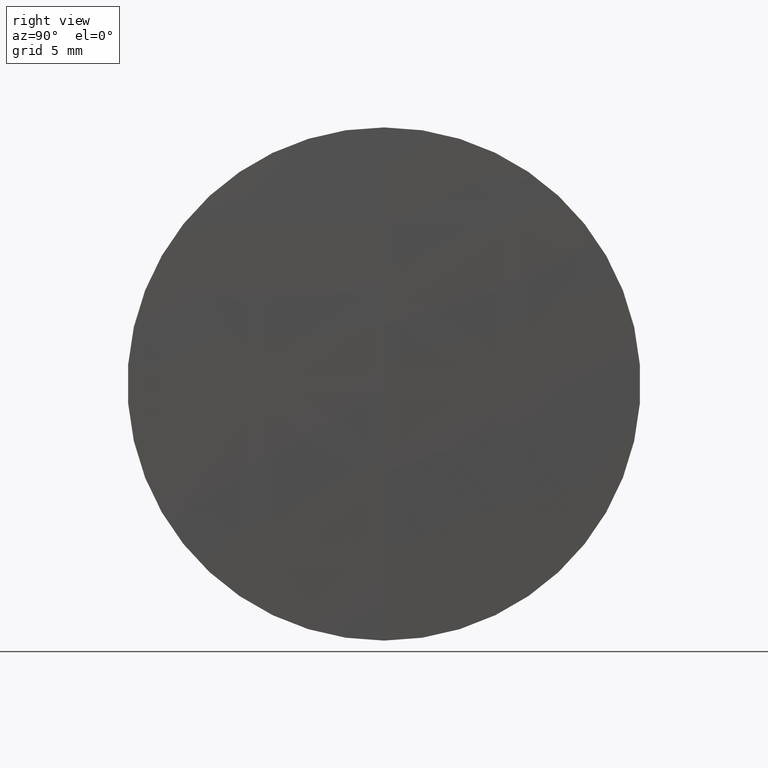
[diagram: clean part render]
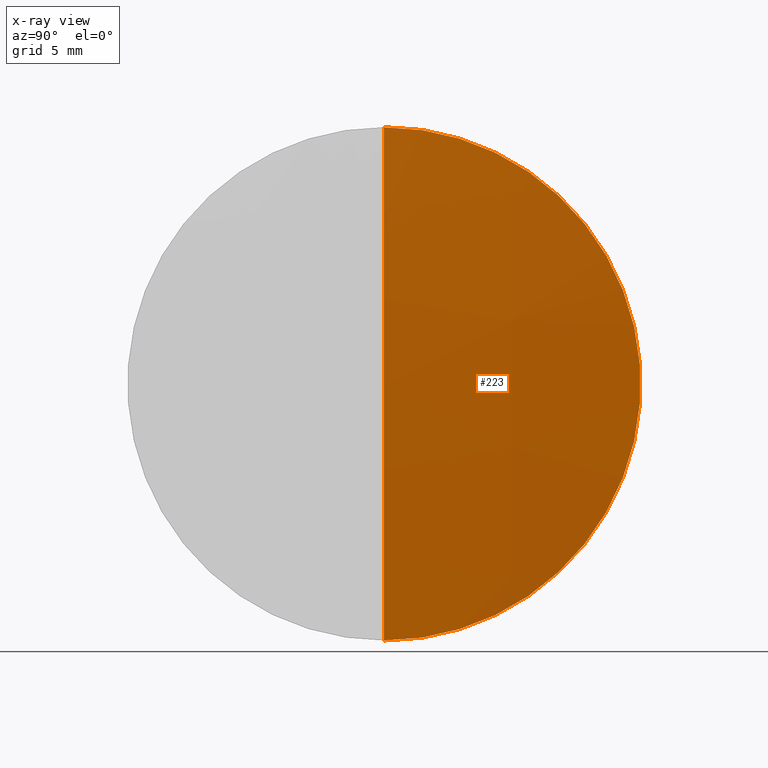
[diagram: x-ray — body ghosted, one internal face saturated and labeled with its STEP entity id]
A machine part, right view, then the same camera in x-ray: the body is ghosted and one INTERNAL B-rep face — a face not visible from any outside direction — is saturated and labeled: STEP entity #223.
In plain terms, the highlighted spherical surface has radius 162.39 mm.
Its self-contained STEP definition (entity closure, byte-faithful):
#12 = AXIS2_PLACEMENT_3D ( 'NONE', #168, #215, #194 ) ;
#32 = DIRECTION ( 'NONE',  ( 0.0000000000000000000, 0.0000000000000000000, 1.000000000000000000 ) ) ;
#51 = CIRCLE ( 'NONE', #136, 12.50000000000000000 ) ;
#57 = EDGE_CURVE ( 'NONE', #286, #201, #315, .T. ) ;
#58 = CARTESIAN_POINT ( 'NONE',  ( 176.7878593161265700, 1.530808498934191500E-015, -12.50000000000000000 ) ) ;
#59 = ORIENTED_EDGE ( 'NONE', *, *, #57, .F. ) ;
#61 = DIRECTION ( 'NONE',  ( -1.000000000000000000, -0.0000000000000000000, -0.0000000000000000000 ) ) ;
#64 = CARTESIAN_POINT ( 'NONE',  ( 14.87966897357473400, 0.0000000000000000000, 1.355252715606880500E-017 ) ) ;
#113 = ORIENTED_EDGE ( 'NONE', *, *, #278, .F. ) ;
#116 = EDGE_CURVE ( 'NONE', #286, #338, #176, .T. ) ;
#118 = AXIS2_PLACEMENT_3D ( 'NONE', #191, #230, #197 ) ;
#133 = CARTESIAN_POINT ( 'NONE',  ( 177.2696689735747100, 0.0000000000000000000, 9.957072212833002500E-015 ) ) ;
#136 = AXIS2_PLACEMENT_3D ( 'NONE', #253, #61, #329 ) ;
#141 = FACE_OUTER_BOUND ( 'NONE', #184, .T. ) ;
#168 = CARTESIAN_POINT ( 'NONE',  ( 14.87966897357473400, 0.0000000000000000000, 1.355252715606880500E-017 ) ) ;
#176 = CIRCLE ( 'NONE', #118, 162.3899999999999900 ) ;
#184 = EDGE_LOOP ( 'NONE', ( #59, #212, #113 ) ) ;
#191 = CARTESIAN_POINT ( 'NONE',  ( 14.87966897357473400, 0.0000000000000000000, 1.355252715606880500E-017 ) ) ;
#194 = DIRECTION ( 'NONE',  ( 0.0000000000000000000, 0.0000000000000000000, -1.000000000000000000 ) ) ;
#197 = DIRECTION ( 'NONE',  ( 0.0000000000000000000, -1.224646799147353200E-016, 1.000000000000000000 ) ) ;
#201 = VERTEX_POINT ( 'NONE', #330 ) ;
#212 = ORIENTED_EDGE ( 'NONE', *, *, #116, .T. ) ;
#215 = DIRECTION ( 'NONE',  ( 0.0000000000000000000, -1.000000000000000000, 0.0000000000000000000 ) ) ;
#217 = DIRECTION ( 'NONE',  ( 0.0000000000000000000, 1.000000000000000000, 0.0000000000000000000 ) ) ;
#223 = ADVANCED_FACE ( 'NONE', ( #141 ), #226, .T. ) ;
#226 = SPHERICAL_SURFACE ( 'NONE', #254, 162.3899999999999900 ) ;
#230 = DIRECTION ( 'NONE',  ( -0.0000000000000000000, 1.000000000000000000, 1.224646799147353200E-016 ) ) ;
#253 = CARTESIAN_POINT ( 'NONE',  ( 176.7878593161265700, 0.0000000000000000000, 0.0000000000000000000 ) ) ;
#254 = AXIS2_PLACEMENT_3D ( 'NONE', #64, #217, #32 ) ;
#278 = EDGE_CURVE ( 'NONE', #201, #338, #51, .T. ) ;
#286 = VERTEX_POINT ( 'NONE', #133 ) ;
#315 = CIRCLE ( 'NONE', #12, 162.3899999999999900 ) ;
#329 = DIRECTION ( 'NONE',  ( 0.0000000000000000000, 0.0000000000000000000, 1.000000000000000000 ) ) ;
#330 = CARTESIAN_POINT ( 'NONE',  ( 176.7878593161265700, 0.0000000000000000000, 12.50000000000000000 ) ) ;
#338 = VERTEX_POINT ( 'NONE', #58 ) ;